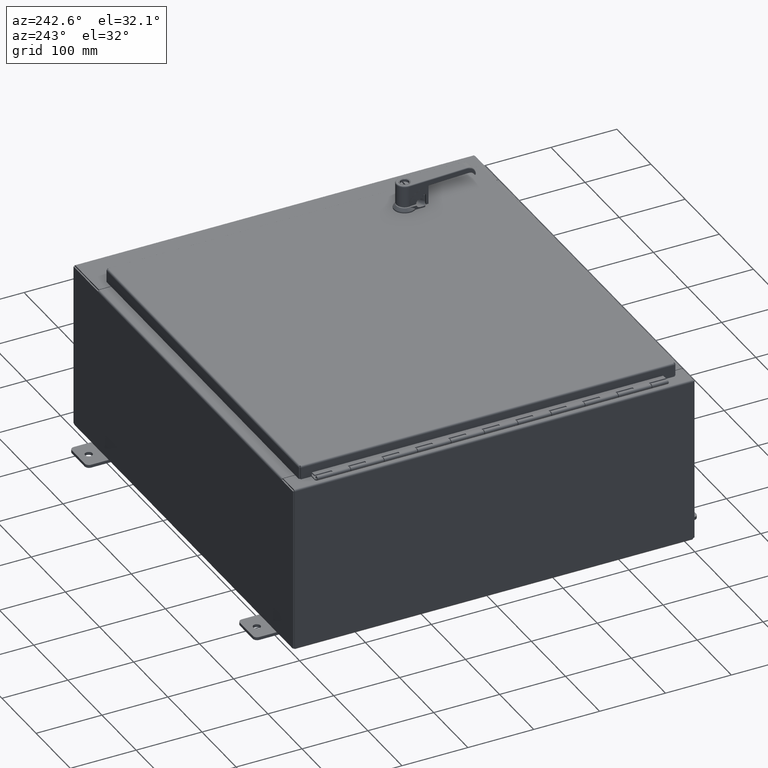
[diagram: clean part render]
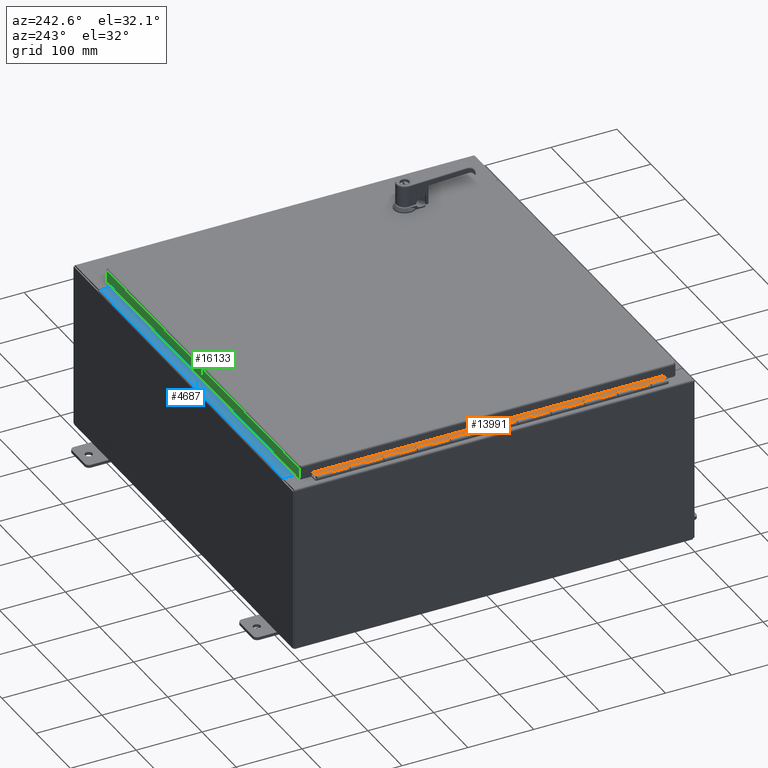
[diagram: same view with three faces highlighted in distinct colors, each labeled with its STEP entity id]
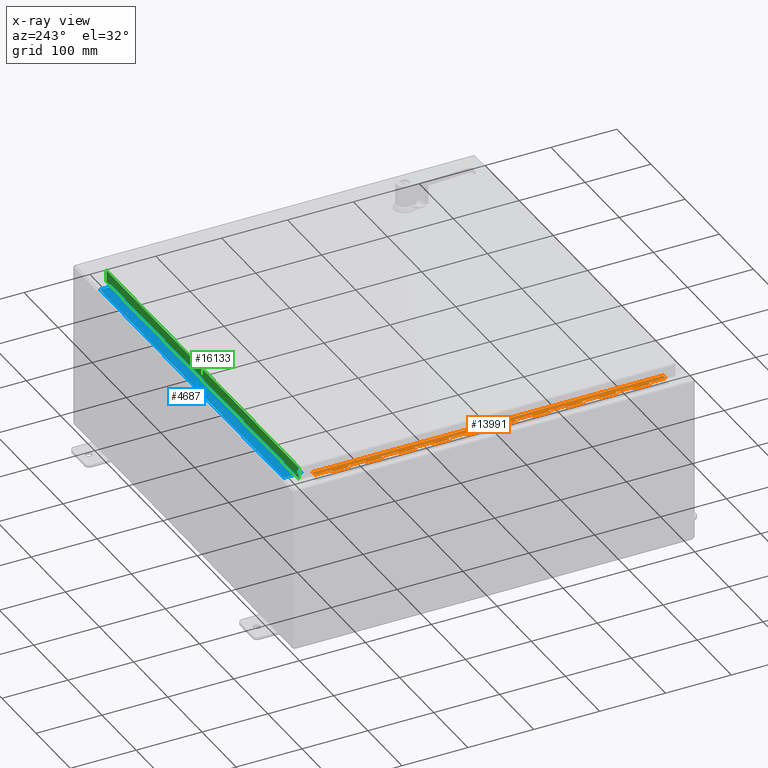
[diagram: x-ray of the same camera — body ghosted, the three highlighted faces saturated]
A machine part, auxiliary view with three faces highlighted in distinct colors.
The next image is the same camera in x-ray (body ghosted, the three faces saturated) — at least one of them is partly hidden behind the body in this view.
Their STEP definitions:

[orange] entity #13991 — the highlighted planar face has unit normal (0.0872, -0, 0.9962).
#12529=CARTESIAN_POINT('',(0.0,-0.125,1.000000000000002));
#12530=VERTEX_POINT('',#12529);
#12540=CARTESIAN_POINT('',(-0.18,-0.125,1.000000000000002));
#12541=VERTEX_POINT('',#12540);
#12542=CARTESIAN_POINT('',(-0.18,-0.125,1.000000000000013));
#12543=DIRECTION('',(1.0,0.0,0.0));
#12544=VECTOR('',#12543,0.18);
#12545=LINE('',#12542,#12544);
#12546=EDGE_CURVE('',#12541,#12530,#12545,.T.);
#12589=CARTESIAN_POINT('',(-0.18,-0.125,0.0));
#12590=VERTEX_POINT('',#12589);
#12604=CARTESIAN_POINT('',(-0.18,-0.125,0.0));
#12605=DIRECTION('',(0.0,0.0,1.0));
#12606=VECTOR('',#12605,1.000000000000002);
#12607=LINE('',#12604,#12606);
#12608=EDGE_CURVE('',#12590,#12541,#12607,.T.);
#12618=CARTESIAN_POINT('',(0.0,-0.125,3.000000000000002));
#12619=VERTEX_POINT('',#12618);
#12629=CARTESIAN_POINT('',(-0.18,-0.125,3.000000000000001));
#12630=VERTEX_POINT('',#12629);
#12631=CARTESIAN_POINT('',(-0.18,-0.125,3.000000000000012));
#12632=DIRECTION('',(1.0,0.0,0.0));
#12633=VECTOR('',#12632,0.18);
#12634=LINE('',#12631,#12633);
#12635=EDGE_CURVE('',#12630,#12619,#12634,.T.);
#12685=CARTESIAN_POINT('',(-0.18,-0.125,1.980000000000012));
#12686=VERTEX_POINT('',#12685);
#12687=CARTESIAN_POINT('',(-0.18,-0.125,1.980000000000012));
#12688=DIRECTION('',(0.0,0.0,1.0));
#12689=VECTOR('',#12688,1.01999999999999);
#12690=LINE('',#12687,#12689);
#12691=EDGE_CURVE('',#12686,#12630,#12690,.T.);
#12709=CARTESIAN_POINT('',(0.0,-0.125,1.980000000000001));
#12710=VERTEX_POINT('',#12709);
#12742=CARTESIAN_POINT('',(0.0,-0.125,1.980000000000012));
#12743=DIRECTION('',(-1.0,0.0,0.0));
#12744=VECTOR('',#12743,0.18);
#12745=LINE('',#12742,#12744);
#12746=EDGE_CURVE('',#12710,#12686,#12745,.T.);
#12756=CARTESIAN_POINT('',(0.0,-0.125,5.000000000000001));
#12757=VERTEX_POINT('',#12756);
#12767=CARTESIAN_POINT('',(-0.18,-0.125,5.000000000000001));
#12768=VERTEX_POINT('',#12767);
#12769=CARTESIAN_POINT('',(-0.18,-0.125,5.000000000000012));
#12770=DIRECTION('',(1.0,0.0,0.0));
#12771=VECTOR('',#12770,0.18);
#12772=LINE('',#12769,#12771);
#12773=EDGE_CURVE('',#12768,#12757,#12772,.T.);
#12823=CARTESIAN_POINT('',(-0.18,-0.125,3.980000000000011));
#12824=VERTEX_POINT('',#12823);
#12825=CARTESIAN_POINT('',(-0.18,-0.125,3.980000000000011));
#12826=DIRECTION('',(0.0,0.0,1.0));
#12827=VECTOR('',#12826,1.01999999999999);
#12828=LINE('',#12825,#12827);
#12829=EDGE_CURVE('',#12824,#12768,#12828,.T.);
#12847=CARTESIAN_POINT('',(0.0,-0.125,3.98));
#12848=VERTEX_POINT('',#12847);
#12880=CARTESIAN_POINT('',(0.0,-0.125,3.980000000000011));
#12881=DIRECTION('',(-1.0,0.0,0.0));
#12882=VECTOR('',#12881,0.18);
#12883=LINE('',#12880,#12882);
#12884=EDGE_CURVE('',#12848,#12824,#12883,.T.);
#12894=CARTESIAN_POINT('',(0.0,-0.125,7.000000000000001));
#12895=VERTEX_POINT('',#12894);
#12905=CARTESIAN_POINT('',(-0.18,-0.125,7.000000000000001));
#12906=VERTEX_POINT('',#12905);
#12907=CARTESIAN_POINT('',(-0.18,-0.125,7.000000000000012));
#12908=DIRECTION('',(1.0,0.0,0.0));
#12909=VECTOR('',#12908,0.18);
#12910=LINE('',#12907,#12909);
#12911=EDGE_CURVE('',#12906,#12895,#12910,.T.);
#12961=CARTESIAN_POINT('',(-0.18,-0.125,5.980000000000011));
#12962=VERTEX_POINT('',#12961);
#12963=CARTESIAN_POINT('',(-0.18,-0.125,5.980000000000011));
#12964=DIRECTION('',(0.0,0.0,1.0));
#12965=VECTOR('',#12964,1.01999999999999);
#12966=LINE('',#12963,#12965);
#12967=EDGE_CURVE('',#12962,#12906,#12966,.T.);
#12985=CARTESIAN_POINT('',(0.0,-0.125,5.98));
#12986=VERTEX_POINT('',#12985);
#13018=CARTESIAN_POINT('',(0.0,-0.125,5.980000000000011));
#13019=DIRECTION('',(-1.0,0.0,0.0));
#13020=VECTOR('',#13019,0.18);
#13021=LINE('',#13018,#13020);
#13022=EDGE_CURVE('',#12986,#12962,#13021,.T.);
#13032=CARTESIAN_POINT('',(0.0,-0.125,9.000000000000004));
#13033=VERTEX_POINT('',#13032);
#13043=CARTESIAN_POINT('',(-0.18,-0.125,9.000000000000004));
#13044=VERTEX_POINT('',#13043);
#13045=CARTESIAN_POINT('',(-0.18,-0.125,9.000000000000014));
#13046=DIRECTION('',(1.0,0.0,0.0));
#13047=VECTOR('',#13046,0.18);
#13048=LINE('',#13045,#13047);
#13049=EDGE_CURVE('',#13044,#13033,#13048,.T.);
#13099=CARTESIAN_POINT('',(-0.18,-0.125,7.980000000000014));
#13100=VERTEX_POINT('',#13099);
#13101=CARTESIAN_POINT('',(-0.18,-0.125,7.980000000000014));
#13102=DIRECTION('',(0.0,0.0,1.0));
#13103=VECTOR('',#13102,1.01999999999999);
#13104=LINE('',#13101,#13103);
#13105=EDGE_CURVE('',#13100,#13044,#13104,.T.);
#13123=CARTESIAN_POINT('',(0.0,-0.125,7.980000000000002));
#13124=VERTEX_POINT('',#13123);
#13156=CARTESIAN_POINT('',(0.0,-0.125,7.980000000000014));
#13157=DIRECTION('',(-1.0,0.0,0.0));
#13158=VECTOR('',#13157,0.18);
#13159=LINE('',#13156,#13158);
#13160=EDGE_CURVE('',#13124,#13100,#13159,.T.);
#13170=CARTESIAN_POINT('',(0.0,-0.125,11.000000000000002));
#13171=VERTEX_POINT('',#13170);
#13181=CARTESIAN_POINT('',(-0.18,-0.125,11.000000000000002));
#13182=VERTEX_POINT('',#13181);
#13183=CARTESIAN_POINT('',(-0.18,-0.125,11.000000000000014));
#13184=DIRECTION('',(1.0,0.0,0.0));
#13185=VECTOR('',#13184,0.18);
#13186=LINE('',#13183,#13185);
#13187=EDGE_CURVE('',#13182,#13171,#13186,.T.);
#13237=CARTESIAN_POINT('',(-0.18,-0.125,9.980000000000013));
#13238=VERTEX_POINT('',#13237);
#13239=CARTESIAN_POINT('',(-0.18,-0.125,9.980000000000013));
#13240=DIRECTION('',(0.0,0.0,1.0));
#13241=VECTOR('',#13240,1.019999999999989);
#13242=LINE('',#13239,#13241);
#13243=EDGE_CURVE('',#13238,#13182,#13242,.T.);
#13261=CARTESIAN_POINT('',(0.0,-0.125,9.980000000000002));
#13262=VERTEX_POINT('',#13261);
#13294=CARTESIAN_POINT('',(-6.162976E-033,-0.125,9.980000000000013));
#13295=DIRECTION('',(-1.0,0.0,0.0));
#13296=VECTOR('',#13295,0.18);
#13297=LINE('',#13294,#13296);
#13298=EDGE_CURVE('',#13262,#13238,#13297,.T.);
#13308=CARTESIAN_POINT('',(0.0,-0.125,13.000000000000002));
#13309=VERTEX_POINT('',#13308);
#13319=CARTESIAN_POINT('',(-0.18,-0.125,13.000000000000002));
#13320=VERTEX_POINT('',#13319);
#13321=CARTESIAN_POINT('',(-0.18,-0.125,13.000000000000012));
#13322=DIRECTION('',(1.0,0.0,0.0));
#13323=VECTOR('',#13322,0.18);
#13324=LINE('',#13321,#13323);
#13325=EDGE_CURVE('',#13320,#13309,#13324,.T.);
#13375=CARTESIAN_POINT('',(-0.18,-0.125,11.980000000000013));
#13376=VERTEX_POINT('',#13375);
#13377=CARTESIAN_POINT('',(-0.18,-0.125,11.980000000000011));
#13378=DIRECTION('',(0.0,0.0,1.0));
#13379=VECTOR('',#13378,1.019999999999991);
#13380=LINE('',#13377,#13379);
#13381=EDGE_CURVE('',#13376,#13320,#13380,.T.);
#13399=CARTESIAN_POINT('',(0.0,-0.125,11.98));
#13400=VERTEX_POINT('',#13399);
#13432=CARTESIAN_POINT('',(-6.162976E-033,-0.125,11.980000000000013));
#13433=DIRECTION('',(-1.0,0.0,0.0));
#13434=VECTOR('',#13433,0.18);
#13435=LINE('',#13432,#13434);
#13436=EDGE_CURVE('',#13400,#13376,#13435,.T.);
#13446=CARTESIAN_POINT('',(0.0,-0.125,15.000000000000004));
#13447=VERTEX_POINT('',#13446);
#13457=CARTESIAN_POINT('',(-0.18,-0.125,15.000000000000004));
#13458=VERTEX_POINT('',#13457);
#13459=CARTESIAN_POINT('',(-0.18,-0.125,15.000000000000016));
#13460=DIRECTION('',(1.0,0.0,0.0));
#13461=VECTOR('',#13460,0.18);
#13462=LINE('',#13459,#13461);
#13463=EDGE_CURVE('',#13458,#13447,#13462,.T.);
#13513=CARTESIAN_POINT('',(-0.18,-0.125,13.980000000000015));
#13514=VERTEX_POINT('',#13513);
#13515=CARTESIAN_POINT('',(-0.18,-0.125,13.980000000000015));
#13516=DIRECTION('',(0.0,0.0,1.0));
#13517=VECTOR('',#13516,1.019999999999989);
#13518=LINE('',#13515,#13517);
#13519=EDGE_CURVE('',#13514,#13458,#13518,.T.);
#13537=CARTESIAN_POINT('',(0.0,-0.125,13.980000000000004));
#13538=VERTEX_POINT('',#13537);
#13570=CARTESIAN_POINT('',(-6.162976E-033,-0.125,13.980000000000015));
#13571=DIRECTION('',(-1.0,0.0,0.0));
#13572=VECTOR('',#13571,0.18);
#13573=LINE('',#13570,#13572);
#13574=EDGE_CURVE('',#13538,#13514,#13573,.T.);
#13584=CARTESIAN_POINT('',(0.0,-0.125,17.000000000000007));
#13585=VERTEX_POINT('',#13584);
#13595=CARTESIAN_POINT('',(-0.18,-0.125,17.000000000000004));
#13596=VERTEX_POINT('',#13595);
#13597=CARTESIAN_POINT('',(-0.18,-0.125,17.000000000000014));
#13598=DIRECTION('',(1.0,0.0,0.0));
#13599=VECTOR('',#13598,0.18);
#13600=LINE('',#13597,#13599);
#13601=EDGE_CURVE('',#13596,#13585,#13600,.T.);
#13651=CARTESIAN_POINT('',(-0.18,-0.125,15.980000000000015));
#13652=VERTEX_POINT('',#13651);
#13653=CARTESIAN_POINT('',(-0.18,-0.125,15.980000000000015));
#13654=DIRECTION('',(0.0,0.0,1.0));
#13655=VECTOR('',#13654,1.019999999999989);
#13656=LINE('',#13653,#13655);
#13657=EDGE_CURVE('',#13652,#13596,#13656,.T.);
#13675=CARTESIAN_POINT('',(0.0,-0.125,15.980000000000002));
#13676=VERTEX_POINT('',#13675);
#13708=CARTESIAN_POINT('',(-6.162976E-033,-0.125,15.980000000000015));
#13709=DIRECTION('',(-1.0,0.0,0.0));
#13710=VECTOR('',#13709,0.18);
#13711=LINE('',#13708,#13710);
#13712=EDGE_CURVE('',#13676,#13652,#13711,.T.);
#13722=CARTESIAN_POINT('',(0.0,-0.125,19.0));
#13723=VERTEX_POINT('',#13722);
#13733=CARTESIAN_POINT('',(-0.18,-0.125,19.000000000000004));
#13734=VERTEX_POINT('',#13733);
#13735=CARTESIAN_POINT('',(-0.18,-0.125,19.000000000000014));
#13736=DIRECTION('',(1.0,0.0,0.0));
#13737=VECTOR('',#13736,0.18);
#13738=LINE('',#13735,#13737);
#13739=EDGE_CURVE('',#13734,#13723,#13738,.T.);
#13789=CARTESIAN_POINT('',(-0.18,-0.125,17.980000000000015));
#13790=VERTEX_POINT('',#13789);
#13791=CARTESIAN_POINT('',(-0.18,-0.125,17.980000000000015));
#13792=DIRECTION('',(0.0,0.0,1.0));
#13793=VECTOR('',#13792,1.019999999999989);
#13794=LINE('',#13791,#13793);
#13795=EDGE_CURVE('',#13790,#13734,#13794,.T.);
#13813=CARTESIAN_POINT('',(0.0,-0.125,17.980000000000004));
#13814=VERTEX_POINT('',#13813);
#13846=CARTESIAN_POINT('',(-3.081488E-033,-0.125,17.980000000000015));
#13847=DIRECTION('',(-1.0,0.0,0.0));
#13848=VECTOR('',#13847,0.18);
#13849=LINE('',#13846,#13848);
#13850=EDGE_CURVE('',#13814,#13790,#13849,.T.);
#13855=CARTESIAN_POINT('',(1.530808E-017,-0.125,0.0));
#13856=DIRECTION('',(0.0,-1.0,0.0));
#13857=DIRECTION('',(0.0,0.0,-1.0));
#13858=AXIS2_PLACEMENT_3D('',#13855,#13856,#13857);
#13859=PLANE('',#13858);
#13860=ORIENTED_EDGE('',*,*,#12608,.T.);
#13861=ORIENTED_EDGE('',*,*,#12546,.T.);
#13862=CARTESIAN_POINT('',(1.530808E-017,-0.125,1.000000000000002));
#13863=DIRECTION('',(0.0,0.0,1.0));
#13864=VECTOR('',#13863,0.979999999999999);
#13865=LINE('',#13862,#13864);
#13866=EDGE_CURVE('',#12530,#12710,#13865,.T.);
#13867=ORIENTED_EDGE('',*,*,#13866,.T.);
#13868=ORIENTED_EDGE('',*,*,#12746,.T.);
#13869=ORIENTED_EDGE('',*,*,#12691,.T.);
#13870=ORIENTED_EDGE('',*,*,#12635,.T.);
#13871=CARTESIAN_POINT('',(1.530808E-017,-0.125,3.000000000000002));
#13872=DIRECTION('',(0.0,0.0,1.0));
#13873=VECTOR('',#13872,0.979999999999998);
#13874=LINE('',#13871,#13873);
#13875=EDGE_CURVE('',#12619,#12848,#13874,.T.);
#13876=ORIENTED_EDGE('',*,*,#13875,.T.);
#13877=ORIENTED_EDGE('',*,*,#12884,.T.);
#13878=ORIENTED_EDGE('',*,*,#12829,.T.);
#13879=ORIENTED_EDGE('',*,*,#12773,.T.);
#13880=CARTESIAN_POINT('',(1.530808E-017,-0.125,5.000000000000001));
#13881=DIRECTION('',(0.0,0.0,1.0));
#13882=VECTOR('',#13881,0.979999999999999);
#13883=LINE('',#13880,#13882);
#13884=EDGE_CURVE('',#12757,#12986,#13883,.T.);
#13885=ORIENTED_EDGE('',*,*,#13884,.T.);
#13886=ORIENTED_EDGE('',*,*,#13022,.T.);
#13887=ORIENTED_EDGE('',*,*,#12967,.T.);
#13888=ORIENTED_EDGE('',*,*,#12911,.T.);
#13889=CARTESIAN_POINT('',(1.530808E-017,-0.125,7.000000000000001));
#13890=DIRECTION('',(0.0,0.0,1.0));
#13891=VECTOR('',#13890,0.980000000000001);
#13892=LINE('',#13889,#13891);
#13893=EDGE_CURVE('',#12895,#13124,#13892,.T.);
#13894=ORIENTED_EDGE('',*,*,#13893,.T.);
#13895=ORIENTED_EDGE('',*,*,#13160,.T.);
#13896=ORIENTED_EDGE('',*,*,#13105,.T.);
#13897=ORIENTED_EDGE('',*,*,#13049,.T.);
#13898=CARTESIAN_POINT('',(1.530808E-017,-0.125,9.000000000000004));
#13899=DIRECTION('',(0.0,0.0,1.0));
#13900=VECTOR('',#13899,0.979999999999999);
#13901=LINE('',#13898,#13900);
#13902=EDGE_CURVE('',#13033,#13262,#13901,.T.);
#13903=ORIENTED_EDGE('',*,*,#13902,.T.);
#13904=ORIENTED_EDGE('',*,*,#13298,.T.);
#13905=ORIENTED_EDGE('',*,*,#13243,.T.);
#13906=ORIENTED_EDGE('',*,*,#13187,.T.);
#13907=CARTESIAN_POINT('',(1.530808E-017,-0.125,11.000000000000002));
#13908=DIRECTION('',(0.0,0.0,1.0));
#13909=VECTOR('',#13908,0.979999999999999);
#13910=LINE('',#13907,#13909);
#13911=EDGE_CURVE('',#13171,#13400,#13910,.T.);
#13912=ORIENTED_EDGE('',*,*,#13911,.T.);
#13913=ORIENTED_EDGE('',*,*,#13436,.T.);
#13914=ORIENTED_EDGE('',*,*,#13381,.T.);
#13915=ORIENTED_EDGE('',*,*,#13325,.T.);
#13916=CARTESIAN_POINT('',(1.530808E-017,-0.125,13.000000000000002));
#13917=DIRECTION('',(0.0,0.0,1.0));
#13918=VECTOR('',#13917,0.980000000000002);
#13919=LINE('',#13916,#13918);
#13920=EDGE_CURVE('',#13309,#13538,#13919,.T.);
#13921=ORIENTED_EDGE('',*,*,#13920,.T.);
#13922=ORIENTED_EDGE('',*,*,#13574,.T.);
#13923=ORIENTED_EDGE('',*,*,#13519,.T.);
#13924=ORIENTED_EDGE('',*,*,#13463,.T.);
#13925=CARTESIAN_POINT('',(1.530808E-017,-0.125,15.000000000000004));
#13926=DIRECTION('',(0.0,0.0,1.0));
#13927=VECTOR('',#13926,0.979999999999999);
#13928=LINE('',#13925,#13927);
#13929=EDGE_CURVE('',#13447,#13676,#13928,.T.);
#13930=ORIENTED_EDGE('',*,*,#13929,.T.);
#13931=ORIENTED_EDGE('',*,*,#13712,.T.);
#13932=ORIENTED_EDGE('',*,*,#13657,.T.);
#13933=ORIENTED_EDGE('',*,*,#13601,.T.);
#13934=CARTESIAN_POINT('',(1.530808E-017,-0.125,17.000000000000007));
#13935=DIRECTION('',(0.0,0.0,1.0));
#13936=VECTOR('',#13935,0.979999999999997);
#13937=LINE('',#13934,#13936);
#13938=EDGE_CURVE('',#13585,#13814,#13937,.T.);
#13939=ORIENTED_EDGE('',*,*,#13938,.T.);
#13940=ORIENTED_EDGE('',*,*,#13850,.T.);
#13941=ORIENTED_EDGE('',*,*,#13795,.T.);
#13942=ORIENTED_EDGE('',*,*,#13739,.T.);
#13943=CARTESIAN_POINT('',(0.0,-0.125,19.98));
#13944=VERTEX_POINT('',#13943);
#13945=CARTESIAN_POINT('',(1.530808E-017,-0.125,19.0));
#13946=DIRECTION('',(0.0,0.0,1.0));
#13947=VECTOR('',#13946,0.98);
#13948=LINE('',#13945,#13947);
#13949=EDGE_CURVE('',#13723,#13944,#13948,.T.);
#13950=ORIENTED_EDGE('',*,*,#13949,.T.);
#13951=CARTESIAN_POINT('',(-0.18,-0.125,19.980000000000015));
#13952=VERTEX_POINT('',#13951);
#13953=CARTESIAN_POINT('',(-6.162976E-033,-0.125,19.980000000000015));
#13954=DIRECTION('',(-1.0,0.0,0.0));
#13955=VECTOR('',#13954,0.18);
#13956=LINE('',#13953,#13955);
#13957=EDGE_CURVE('',#13944,#13952,#13956,.T.);
#13958=ORIENTED_EDGE('',*,*,#13957,.T.);
#13959=CARTESIAN_POINT('',(-0.18,-0.125,21.000000000000004));
#13960=VERTEX_POINT('',#13959);
#13961=CARTESIAN_POINT('',(-0.18,-0.125,19.980000000000011));
#13962=DIRECTION('',(0.0,0.0,1.0));
#13963=VECTOR('',#13962,1.019999999999993);
#13964=LINE('',#13961,#13963);
#13965=EDGE_CURVE('',#13952,#13960,#13964,.T.);
#13966=ORIENTED_EDGE('',*,*,#13965,.T.);
#13967=CARTESIAN_POINT('',(-0.511005076730884,-0.125,21.000000000000004));
#13968=VERTEX_POINT('',#13967);
#13969=CARTESIAN_POINT('',(-0.18,-0.125,21.000000000000004));
#13970=DIRECTION('',(-1.0,0.0,0.0));
#13971=VECTOR('',#13970,0.331005076730884);
#13972=LINE('',#13969,#13971);
#13973=EDGE_CURVE('',#13960,#13968,#13972,.T.);
#13974=ORIENTED_EDGE('',*,*,#13973,.T.);
#13975=CARTESIAN_POINT('',(-0.511005076730884,-0.125,0.0));
#13976=VERTEX_POINT('',#13975);
#13977=CARTESIAN_POINT('',(-0.511005076730884,-0.125,0.0));
#13978=DIRECTION('',(0.0,0.0,1.0));
#13979=VECTOR('',#13978,21.000000000000004);
#13980=LINE('',#13977,#13979);
#13981=EDGE_CURVE('',#13976,#13968,#13980,.T.);
#13982=ORIENTED_EDGE('',*,*,#13981,.F.);
#13983=CARTESIAN_POINT('',(-0.511005076730884,-0.125,0.0));
#13984=DIRECTION('',(1.0,0.0,0.0));
#13985=VECTOR('',#13984,0.331005076730884);
#13986=LINE('',#13983,#13985);
#13987=EDGE_CURVE('',#13976,#12590,#13986,.T.);
#13988=ORIENTED_EDGE('',*,*,#13987,.T.);
#13989=EDGE_LOOP('',(#13860,#13861,#13867,#13868,#13869,#13870,#13876,#13877,#13878,#13879,#13885,#13886,#13887,#13888,#13894,#13895,#13896,#13897,#13903,#13904,#13905,#13906,#13912,#13913,#13914,#13915,#13921,#13922,#13923,#13924,#13930,#13931,#13932,#13933,#13939,#13940,#13941,#13942,#13950,#13958,#13966,#13974,#13982,#13988));
#13990=FACE_OUTER_BOUND('',#13989,.T.);
#13991=ADVANCED_FACE('',(#13990),#13859,.T.);

[blue] entity #4687 — the highlighted planar face has unit normal (0, 0, 1).
#2547=CARTESIAN_POINT('',(1.34949999999999,22.79274999999949,9.999999999999943));
#2548=VERTEX_POINT('',#2547);
#2556=CARTESIAN_POINT('',(1.349499999999991,23.894749999999526,10.000000000000011));
#2557=VERTEX_POINT('',#2556);
#2558=CARTESIAN_POINT('',(1.349499999999993,23.894749999999526,10.0));
#2559=DIRECTION('',(0.0,-1.0,0.0));
#2560=VECTOR('',#2559,1.102000000000036);
#2561=LINE('',#2558,#2560);
#2562=EDGE_CURVE('',#2557,#2548,#2561,.T.);
#2739=CARTESIAN_POINT('',(22.530499999999996,23.894749999999515,10.00000000000002));
#2740=VERTEX_POINT('',#2739);
#2748=CARTESIAN_POINT('',(22.530499999999996,22.792749999999501,9.999999999999952));
#2749=VERTEX_POINT('',#2748);
#2750=CARTESIAN_POINT('',(22.5305,22.792749999999504,9.999999999999954));
#2751=DIRECTION('',(0.0,1.0,0.0));
#2752=VECTOR('',#2751,1.102000000000015);
#2753=LINE('',#2750,#2752);
#2754=EDGE_CURVE('',#2749,#2740,#2753,.T.);
#3841=CARTESIAN_POINT('',(1.349499999999992,22.792749999999486,9.999999999999943));
#3842=DIRECTION('',(1.0,0.0,0.0));
#3843=VECTOR('',#3842,21.181000000000004);
#3844=LINE('',#3841,#3843);
#3845=EDGE_CURVE('',#2548,#2749,#3844,.T.);
#4671=CARTESIAN_POINT('',(22.5305,23.925999999999501,10.000000000000011));
#4672=DIRECTION('',(0.0,0.0,1.0));
#4673=DIRECTION('',(1.0,0.0,0.0));
#4674=AXIS2_PLACEMENT_3D('',#4671,#4672,#4673);
#4675=PLANE('',#4674);
#4676=ORIENTED_EDGE('',*,*,#3845,.T.);
#4677=ORIENTED_EDGE('',*,*,#2754,.T.);
#4678=CARTESIAN_POINT('',(1.349499999999988,23.894749999999526,10.000000000000009));
#4679=DIRECTION('',(1.0,0.0,0.0));
#4680=VECTOR('',#4679,21.181000000000008);
#4681=LINE('',#4678,#4680);
#4682=EDGE_CURVE('',#2557,#2740,#4681,.T.);
#4683=ORIENTED_EDGE('',*,*,#4682,.F.);
#4684=ORIENTED_EDGE('',*,*,#2562,.T.);
#4685=EDGE_LOOP('',(#4676,#4677,#4683,#4684));
#4686=FACE_OUTER_BOUND('',#4685,.T.);
#4687=ADVANCED_FACE('',(#4686),#4675,.T.);

[green] entity #16133 — the highlighted planar face has unit normal (-0, 1, -0).
#15885=CARTESIAN_POINT('',(0.07470710678118,22.499999999999993,-0.031249999999997));
#15886=VERTEX_POINT('',#15885);
#15887=CARTESIAN_POINT('',(22.26904289321881,22.5,-0.03125));
#15888=VERTEX_POINT('',#15887);
#15889=CARTESIAN_POINT('',(0.074707106781181,22.499999999999993,-0.031250000000002));
#15890=DIRECTION('',(1.0,0.0,0.0));
#15891=VECTOR('',#15890,22.194335786437627);
#15892=LINE('',#15889,#15891);
#15893=EDGE_CURVE('',#15886,#15888,#15892,.T.);
#15971=CARTESIAN_POINT('',(22.26904289321881,22.5,-0.738500000000001));
#15972=VERTEX_POINT('',#15971);
#15973=CARTESIAN_POINT('',(22.26904289321881,22.5,-0.7385));
#15974=DIRECTION('',(0.0,0.0,1.0));
#15975=VECTOR('',#15974,0.70725);
#15976=LINE('',#15973,#15975);
#15977=EDGE_CURVE('',#15972,#15888,#15976,.T.);
#16086=CARTESIAN_POINT('',(0.07470710678118,22.499999999999993,-0.738499999999995));
#16087=VERTEX_POINT('',#16086);
#16088=CARTESIAN_POINT('',(0.07470710678118,22.499999999999989,-0.031249999999997));
#16089=DIRECTION('',(0.0,0.0,-1.0));
#16090=VECTOR('',#16089,0.707249999999997);
#16091=LINE('',#16088,#16090);
#16092=EDGE_CURVE('',#15886,#16087,#16091,.T.);
#16110=CARTESIAN_POINT('',(0.07470710678118,22.499999999999993,-0.738499999999995));
#16111=DIRECTION('',(1.0,0.0,0.0));
#16112=VECTOR('',#16111,22.19433578643763);
#16113=LINE('',#16110,#16112);
#16114=EDGE_CURVE('',#16087,#15972,#16113,.T.);
#16122=CARTESIAN_POINT('',(11.171874999999996,22.499999999999996,-0.335225422747139));
#16123=DIRECTION('',(0.0,1.0,0.0));
#16124=DIRECTION('',(1.0,0.0,0.0));
#16125=AXIS2_PLACEMENT_3D('',#16122,#16123,#16124);
#16126=PLANE('',#16125);
#16127=ORIENTED_EDGE('',*,*,#15893,.T.);
#16128=ORIENTED_EDGE('',*,*,#15977,.F.);
#16129=ORIENTED_EDGE('',*,*,#16114,.F.);
#16130=ORIENTED_EDGE('',*,*,#16092,.F.);
#16131=EDGE_LOOP('',(#16127,#16128,#16129,#16130));
#16132=FACE_OUTER_BOUND('',#16131,.T.);
#16133=ADVANCED_FACE('',(#16132),#16126,.T.);